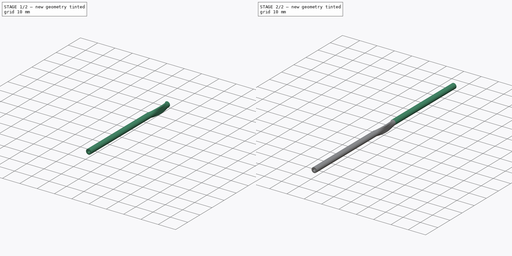
[diagram: build sequence overview — one tinted view per stage of 2, left to right]
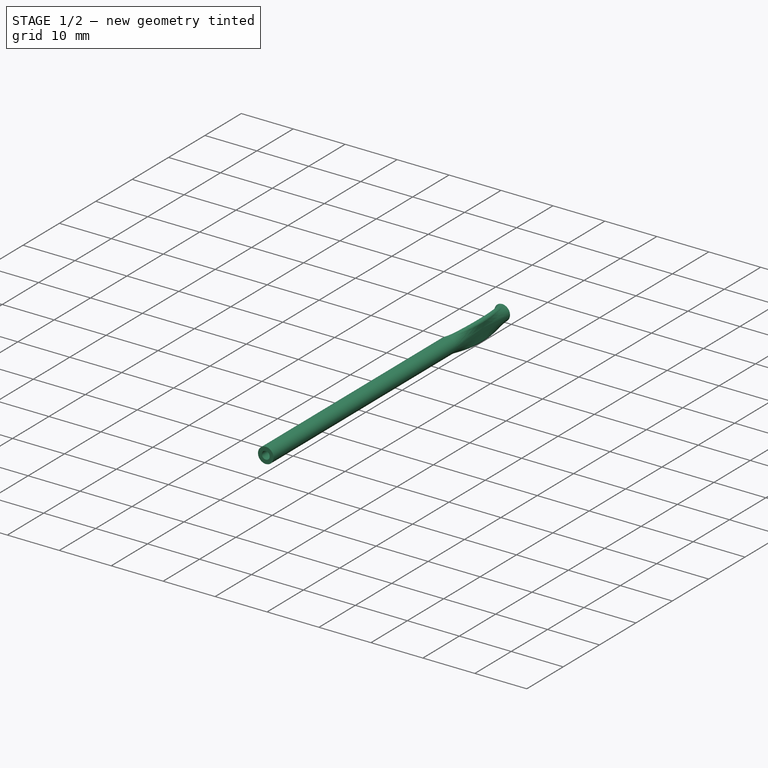
[diagram: stage 1 of 2 — iso view after this stage's code; geometry added in this stage tinted green]
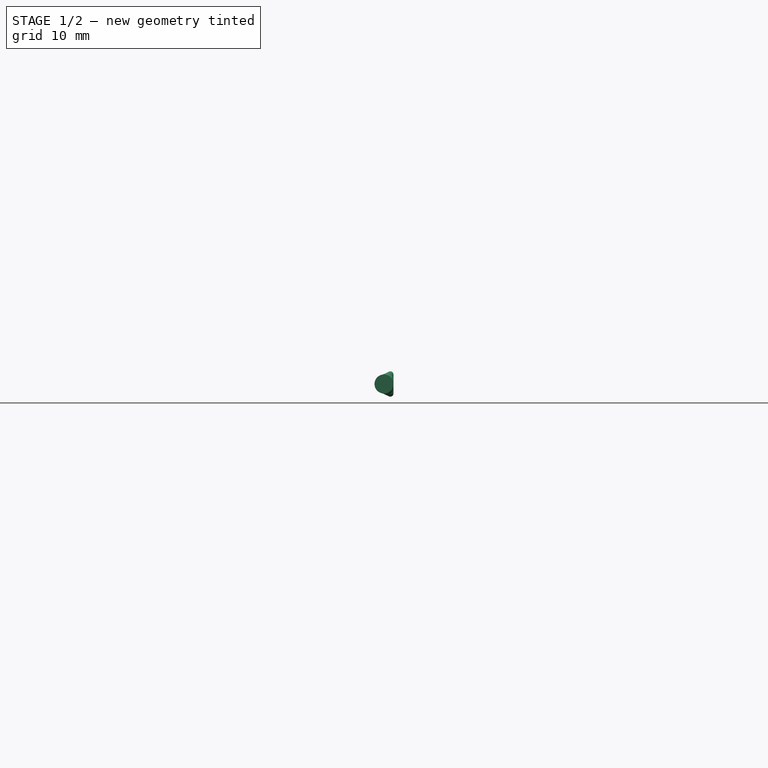
[diagram: stage 1 of 2 — front view after this stage's code; geometry added in this stage tinted green]
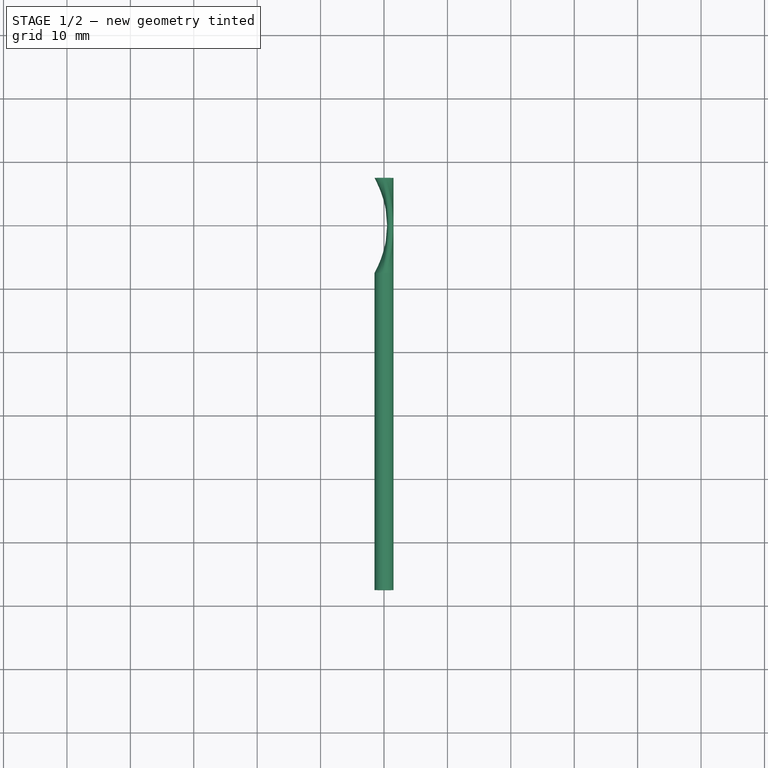
[diagram: stage 1 of 2 — top view after this stage's code; geometry added in this stage tinted green]
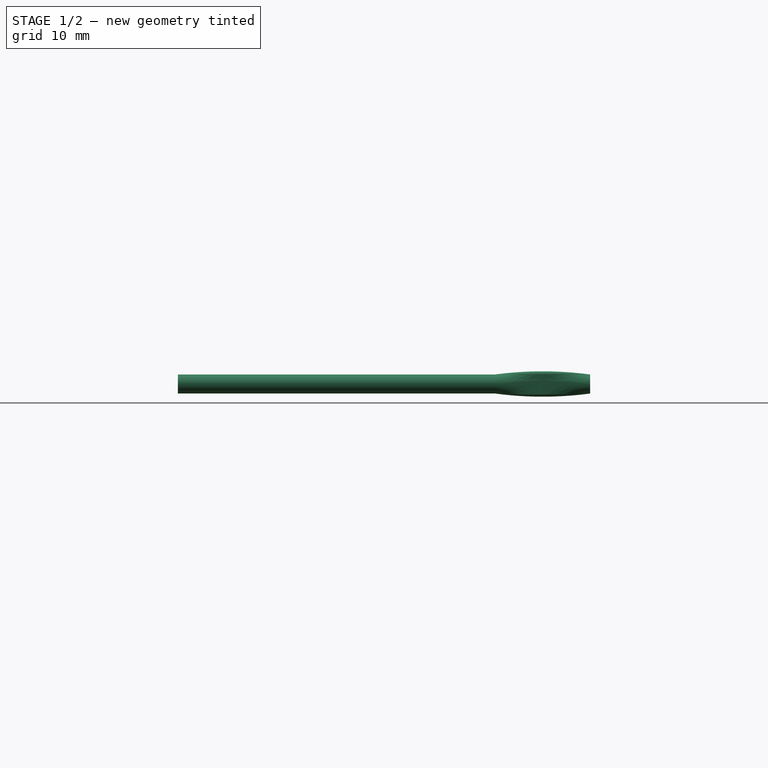
[diagram: stage 1 of 2 — right view after this stage's code; geometry added in this stage tinted green]
FCSTD DOCUMENT  (FreeCAD 1.1R20260414 (Git shallow))
Label: Tube
Comment: Source: ServoQuetsch https://gitlab.com/mikeventor1/ServoQuetsch (CERN-OHL-P-2.0). Multi-file bundle: parts driven by VarSet in V.FCStd.
License: CERN Open Hardware Licence Version 2 - Permissive
LicenseURL: https://ohwr.org/cernohl
objects: Sketcher::SketchObject×5, Part::DatumPlane×2, PartDesign::Pad×2, App::Point×1, PartDesign::AdditiveLoft×1, PartDesign::Body×1
note: 20 computed .brp shape members not serialized (recipe doc carries the construction recipe); baked Part::Feature solids carry a one-line shape summary decoded from their .brp
EXTERNAL_REF file=V.FCStd obj=VarSet

FEATURE [App::Point] Origin001  label="Ursprung"
  Role = Origin
FEATURE [Sketcher::SketchObject] Sketch
  ArcFitTolerance = 1e-06
  AttachmentSupport = -> [Origin]
  ExternalTypes = [0]
  FullyConstrained = true
  MakeInternals = false
  MapMode = 5
  Placement = pos=(0,0,0) rot=(1,0,0;1.5708rad)
  _ExternalGeoVersion = 1
  expr: Constraints[8] = <<V>>#<<VarSet>>.TubeOD / 2
  sketch-geometry (4):
    g0: ArcOfCircle CenterX=1 CenterY=1.5 CenterZ=0 NormalX=0 NormalY=0 NormalZ=1 AngleXU=0 Radius=0.5 StartAngle=-1.95e-14 EndAngle=3.14159
    g1: ArcOfCircle CenterX=1 CenterY=-1.5 CenterZ=0 NormalX=0 NormalY=0 NormalZ=1 AngleXU=0 Radius=0.5 StartAngle=3.14159 EndAngle=6.28319
    g2: LineSegment StartX=1.5 StartY=1.5 StartZ=0 EndX=1.5 EndY=-1.5 EndZ=0
    g3: LineSegment StartX=0.5 StartY=1.5 StartZ=0 EndX=0.5 EndY=-1.5 EndZ=0
  constraints (9):
    c: Tangent(g0,g2) = 1.5708
    c: Tangent(g0,g3) = -1.5708
    c: Tangent(g1,g2) = 1.5708
    c: Tangent(g1,g3) = -1.5708
    c: Equal(g0,g1)
    c: Radius(g0) = 0.5
    c: DistanceY(g1,g0) = 3
    c: Symmetric(g0,g1,g-1)
    c: DistanceX(g-1,g0) = 1.5
FEATURE [Part::DatumPlane] DatumPlane
  AttachmentOffset = pos=(0,0,7.5) rot=(0,0,1;0rad)
  AttachmentSupport = -> [Origin]
  MapMode = 5
  Placement = pos=(0,-7.5,1.7e-15) rot=(1,0,0;1.5708rad)
  expr: .AttachmentOffset.Base.z = <<V>>#<<VarSet>>.CutoutH / 2
FEATURE [Part::DatumPlane] DatumPlane001
  AttachmentOffset = pos=(0,0,-7.5) rot=(0,0,1;0rad)
  AttachmentSupport = -> [Origin]
  MapMode = 5
  Placement = pos=(0,7.5,-1.7e-15) rot=(1,0,0;1.5708rad)
  expr: .AttachmentOffset.Base.z = -<<V>>#<<VarSet>>.CutoutH / 2
FEATURE [Sketcher::SketchObject] Sketch001
  ArcFitTolerance = 1e-06
  AttachmentSupport = -> [DatumPlane]
  ExternalTypes = [0]
  FullyConstrained = true
  MakeInternals = false
  MapMode = 5
  Placement = pos=(0,-7.5,1.7e-15) rot=(1,0,0;1.5708rad)
  _ExternalGeoVersion = 1
  expr: Constraints[1] = <<V>>#<<VarSet>>.TubeOD
  sketch-geometry (1):
    g0: Circle CenterX=0 CenterY=0 CenterZ=0 NormalX=0 NormalY=0 NormalZ=1 AngleXU=0 Radius=1.5
  constraints (2):
    c: Coincident(g0,g-1)
    c: Diameter(g0) = 3
FEATURE [Sketcher::SketchObject] Sketch002
  ArcFitTolerance = 1e-06
  AttachmentSupport = -> [DatumPlane001]
  ExternalTypes = [0]
  FullyConstrained = true
  MakeInternals = false
  MapMode = 5
  Placement = pos=(0,7.5,-1.7e-15) rot=(1,0,0;1.5708rad)
  _ExternalGeoVersion = 1
  expr: Constraints[1] = <<V>>#<<VarSet>>.TubeOD
  sketch-geometry (1):
    g0: Circle CenterX=0 CenterY=0 CenterZ=0 NormalX=0 NormalY=0 NormalZ=1 AngleXU=0 Radius=1.5
  constraints (2):
    c: Coincident(g0,g-1)
    c: Diameter(g0) = 3
FEATURE [PartDesign::AdditiveLoft] AdditiveLoft
  Closed = false
  Placement = pos=(0,-7.5,1.7e-15) rot=(1,0,0;1.5708rad)
  Profile = -> Sketch001
  Ruled = false
  Sections = -> [Sketch,Sketch002]
  Suppressed = false
FEATURE [Sketcher::SketchObject] Sketch003
  ArcFitTolerance = 1e-06
  AttachmentSupport = -> [DatumPlane]
  ExternalTypes = [0]
  FullyConstrained = true
  MakeInternals = false
  MapMode = 5
  Placement = pos=(0,-7.5,1.7e-15) rot=(1,0,0;1.5708rad)
  _ExternalGeoVersion = 1
  expr: Constraints[2] = <<V>>#<<VarSet>>.TubeID
  expr: Constraints[3] = <<V>>#<<VarSet>>.TubeOD
  sketch-geometry (2):
    g0: Circle CenterX=0 CenterY=0 CenterZ=0 NormalX=0 NormalY=0 NormalZ=1 AngleXU=0 Radius=0.75
    g1: Circle CenterX=0 CenterY=0 CenterZ=0 NormalX=0 NormalY=0 NormalZ=1 AngleXU=0 Radius=1.5
  constraints (4):
    c: Coincident(g0,g-1)
    c: Coincident(g1,g0)
    c: Diameter(g0) = 1.5
    c: Diameter(g1) = 3
FEATURE [Sketcher::SketchObject] Sketch004
  ArcFitTolerance = 1e-06
  AttachmentSupport = -> [DatumPlane001]
  ExternalTypes = [0]
  FullyConstrained = true
  MakeInternals = false
  MapMode = 5
  Placement = pos=(0,7.5,-1.7e-15) rot=(1,0,0;1.5708rad)
  _ExternalGeoVersion = 1
  expr: Constraints[2] = <<V>>#<<VarSet>>.TubeID
  expr: Constraints[3] = <<V>>#<<VarSet>>.TubeOD
  sketch-geometry (2):
    g0: Circle CenterX=0 CenterY=0 CenterZ=0 NormalX=0 NormalY=0 NormalZ=1 AngleXU=0 Radius=0.75
    g1: Circle CenterX=0 CenterY=0 CenterZ=0 NormalX=0 NormalY=0 NormalZ=1 AngleXU=0 Radius=1.5
  constraints (4):
    c: Coincident(g0,g-1)
    c: Coincident(g1,g0)
    c: Diameter(g0) = 1.5
    c: Diameter(g1) = 3
FEATURE [PartDesign::Pad] Pad
  BaseFeature = -> AdditiveLoft
  Direction = (0,-1,2e-16)
  Length = 50
  Length2 = 10
  Placement = pos=(0,-7.5,1.7e-15) rot=(1,0,0;1.5708rad)
  Profile = -> Sketch003
  ReferenceAxis = -> Sketch003 [N_Axis]
  SideType = 0
  Suppressed = false
  Type = 0
  Type2 = 0
  expr: Length = <<V>>#<<VarSet>>.TubeEndLen
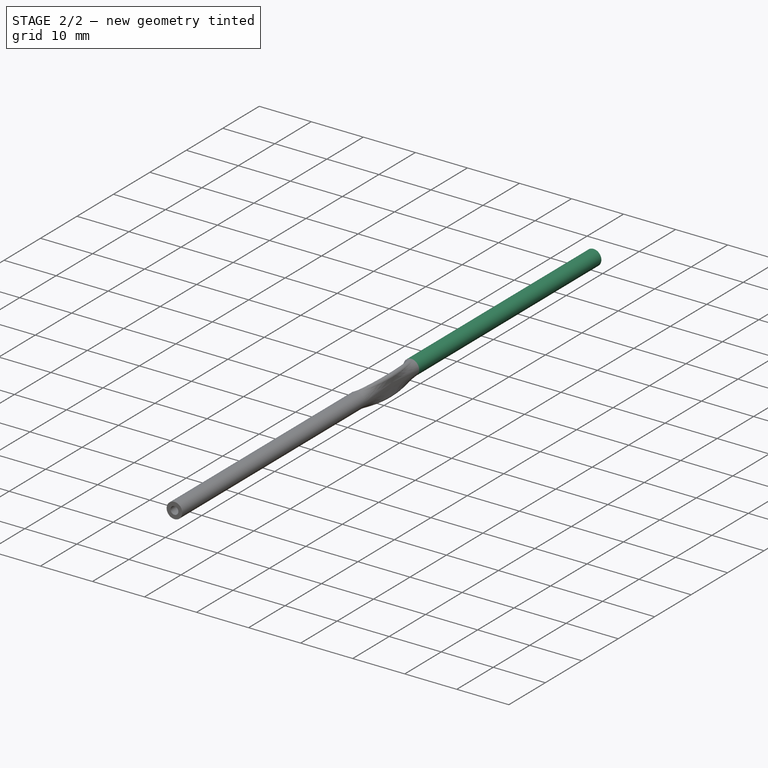
[diagram: stage 2 of 2 — iso view after this stage's code; geometry added in this stage tinted green]
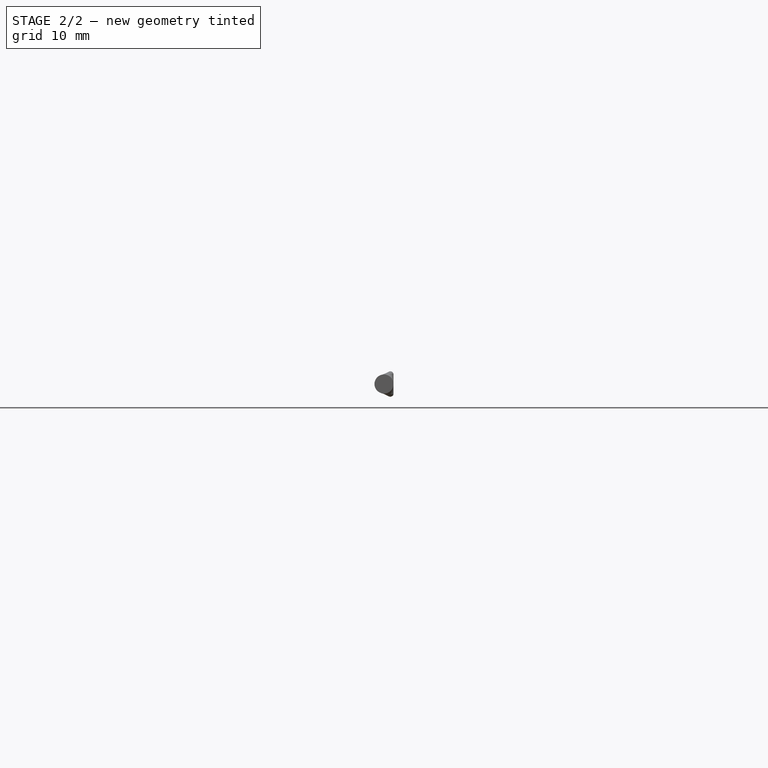
[diagram: stage 2 of 2 — front view after this stage's code; geometry added in this stage tinted green]
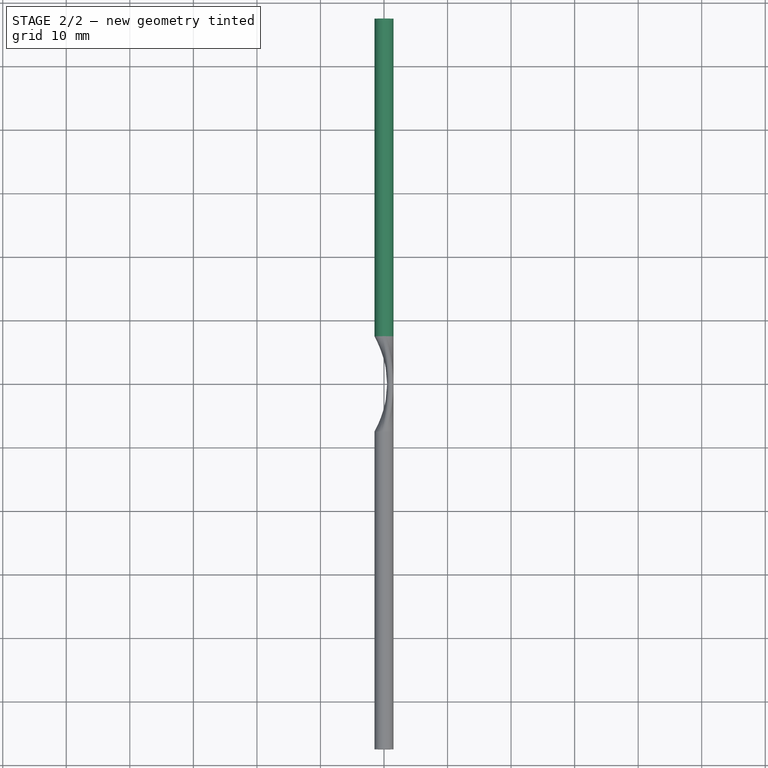
[diagram: stage 2 of 2 — top view after this stage's code; geometry added in this stage tinted green]
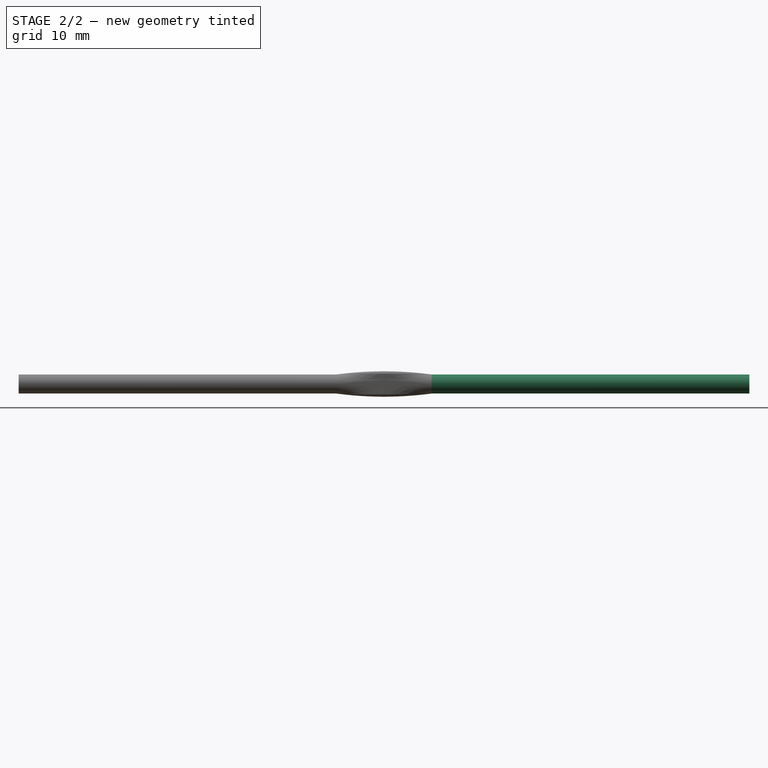
[diagram: stage 2 of 2 — right view after this stage's code; geometry added in this stage tinted green]
FEATURE [PartDesign::Pad] Pad001
  BaseFeature = -> Pad
  Direction = (0,-1,2e-16)
  Length = 50
  Length2 = 10
  Placement = pos=(0,-7.5,1.7e-15) rot=(1,0,0;1.5708rad)
  Profile = -> Sketch004
  ReferenceAxis = -> Sketch004 [N_Axis]
  Reversed = true
  SideType = 0
  Suppressed = false
  Type = 0
  Type2 = 0
  expr: Length = <<V>>#<<VarSet>>.TubeEndLen
FEATURE [PartDesign::Body] Body  label="Tube"
  AllowCompound = false
  Group = -> [Sketch,DatumPlane,DatumPlane001,Sketch001,Sketch002,AdditiveLoft,Sketch003,Sketch004,Pad,Pad001]
  Origin = -> Origin
  Tip = -> Pad001
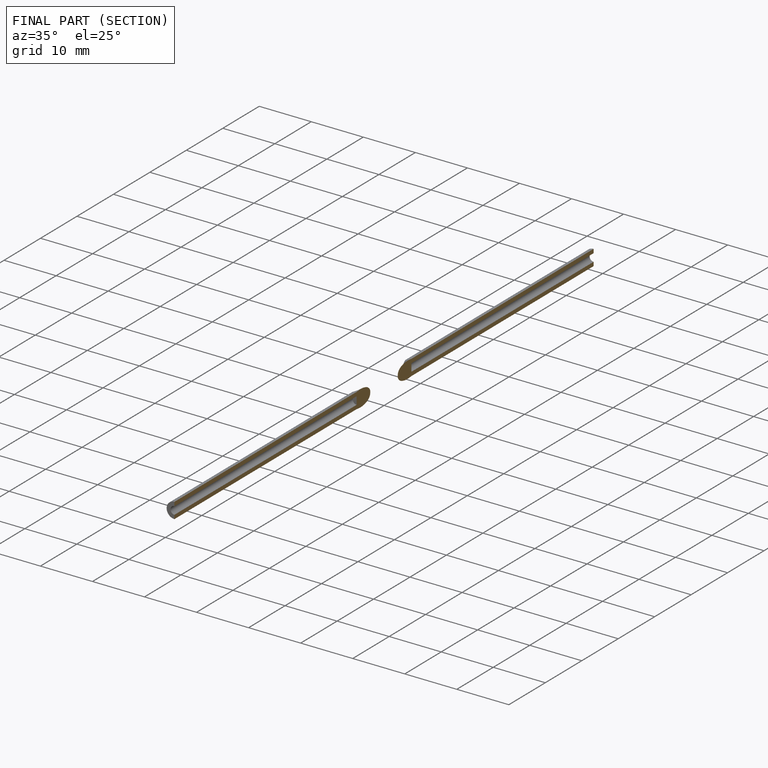
[diagram: finished part — half-section view (interior)]
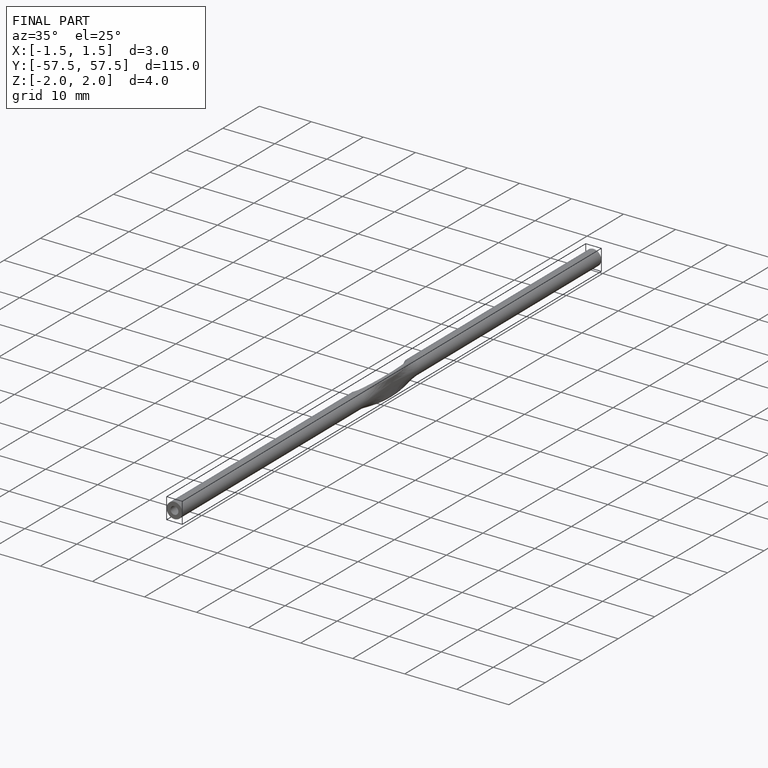
[diagram: finished part — iso view with bounding-box wireframe]
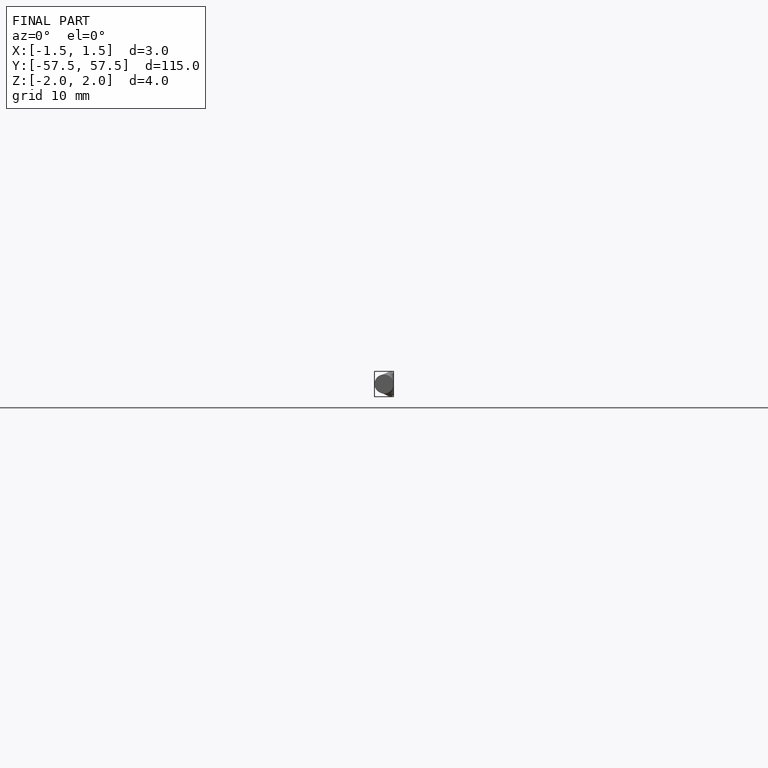
[diagram: finished part — front view with bounding-box wireframe]
